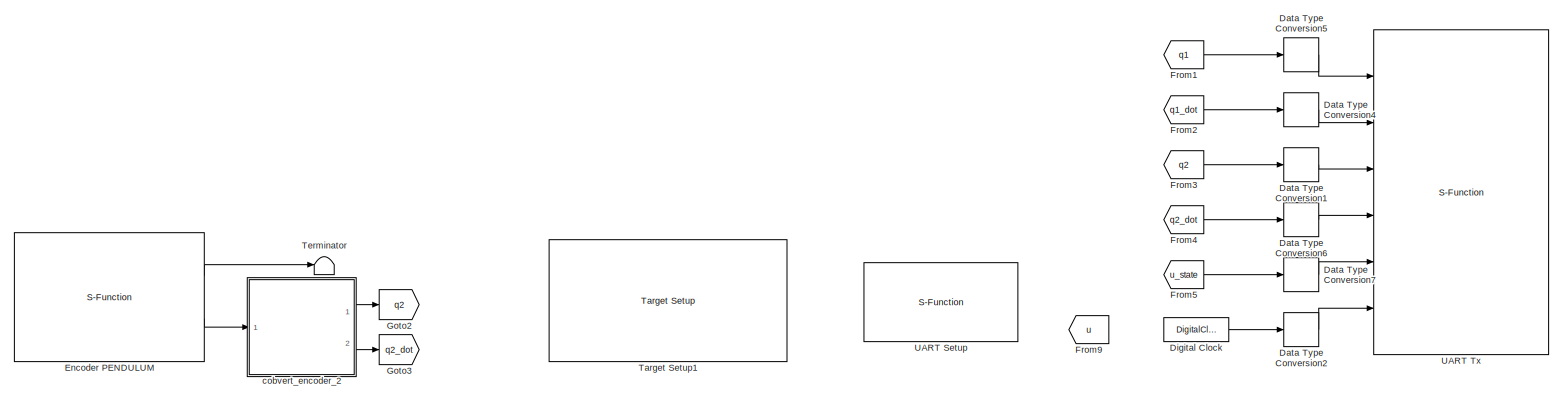
[diagram: root canvas - part 1/4, top center region]
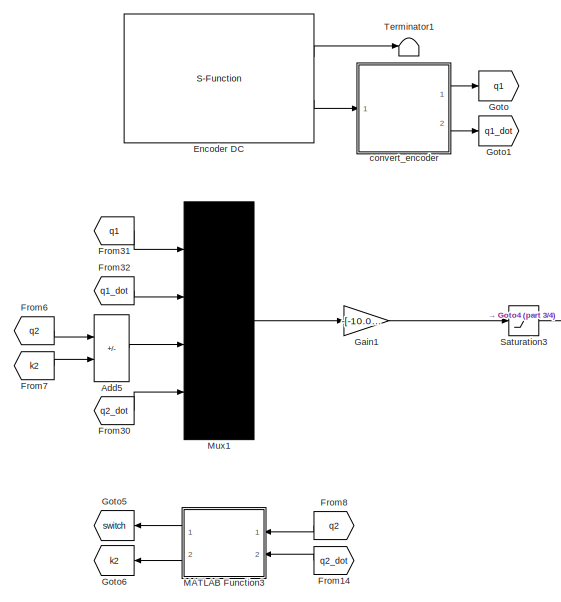
[diagram: root canvas - part 2/4, middle left region]
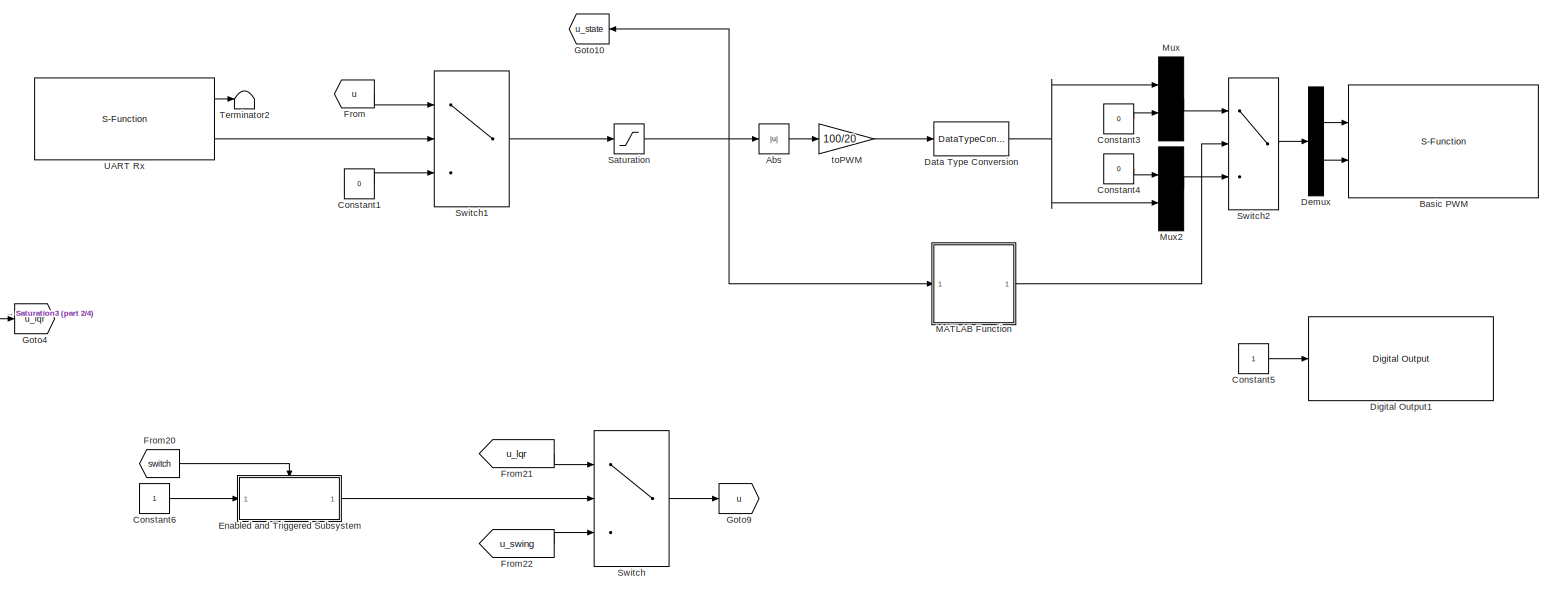
[diagram: root canvas - part 3/4, central region]
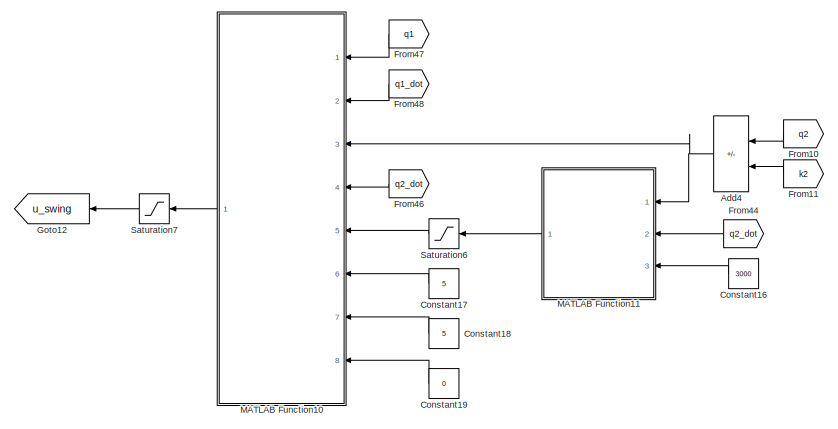
[diagram: root canvas - part 4/4, bottom center region]
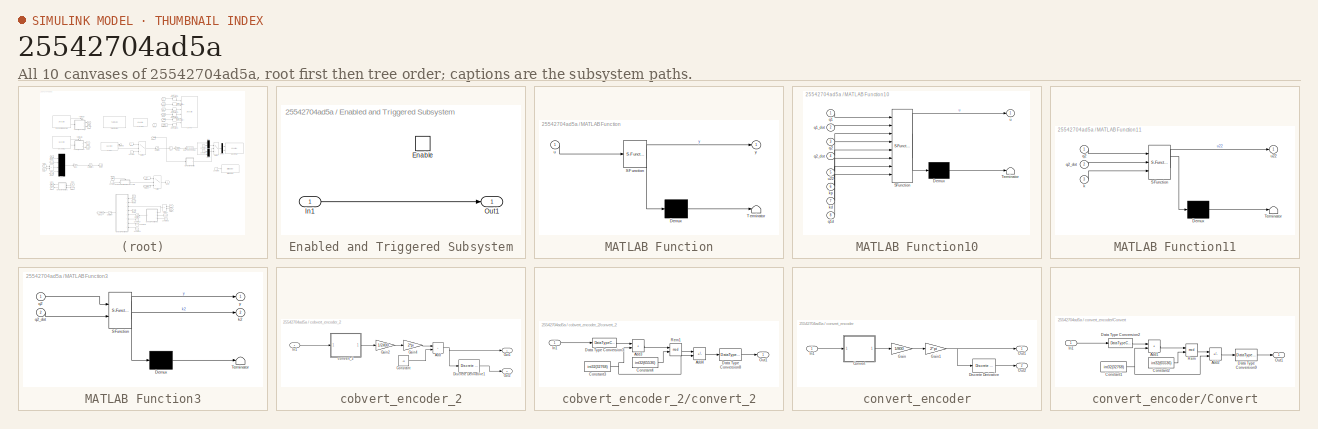
[diagram: thumbnail index - all 10 canvases of the model, root first then tree order]
MODEL slx_25542704ad5a
KIND model
CONFIG AbsTol = auto
CONFIG EnableMultiTasking = off
CONFIG FixedStep = auto
CONFIG MaxStep = auto
CONFIG MinStep = auto
CONFIG PreLoadFcn = waijung.modelPreload; % Required for working with Waijung Blockset. Do not remove.
CONFIG RelTol = 1e-3
CONFIG SampleTimeConstraint = Unconstrained
CONFIG SolverName = FixedStepAuto
CONFIG StartTime = 0.0
CONFIG StopTime = 100
BLOCK [Abs] Abs
  OutDataTypeStr = single
  SaturateOnIntegerOverflow = off
BLOCK [Sum] Add4
  IconShape = rectangular
  Inputs = +-
  NameLocation = top
  Ports = [2, 1]
BLOCK [Sum] Add5
  IconShape = rectangular
  Inputs = +-
  Ports = [2, 1]
BLOCK [S-Function] Basic PWM
  EnableBusSupport = off
  FunctionName = stm32f4_basicpwm
  Parameters = timer,pwmperiod,ch1pin,ch2pin,ch3pin,ch4pin,sampletime,sampletimestr,blockid,apb,portstr,pinstr,pinmat,timarr,timprescale,chmat,polaritystr
  Ports = [2]
  SFcnIsStateOwnerBlock = off
  SFunctionDeploymentMode = off
BLOCK [Constant] Constant1
  SampleTime = 0.02
  Value = 0
BLOCK [Constant] Constant16
  NameLocation = top
  SampleTime = -1
  Value = 3000
BLOCK [Constant] Constant17
  NameLocation = top
  SampleTime = -1
  Value = 5
BLOCK [Constant] Constant18
  NameLocation = top
  SampleTime = -1
  Value = 5
BLOCK [Constant] Constant19
  NameLocation = top
  SampleTime = -1
  Value = 0
BLOCK [Constant] Constant3
  SampleTime = 0.02
  Value = 0
BLOCK [Constant] Constant4
  SampleTime = 0.02
  Value = 0
BLOCK [Constant] Constant5
  SampleTime = 0.02
BLOCK [Constant] Constant6
  SampleTime = 0.02
BLOCK [DataTypeConversion] Data Type Conversion
  OutDataTypeStr = double
  RndMeth = Floor
  SaturateOnIntegerOverflow = off
BLOCK [DataTypeConversion] Data Type Conversion1
  OutDataTypeStr = single
  RndMeth = Floor
  SaturateOnIntegerOverflow = off
BLOCK [DataTypeConversion] Data Type Conversion2
  OutDataTypeStr = single
  RndMeth = Floor
  SaturateOnIntegerOverflow = off
BLOCK [DataTypeConversion] Data Type Conversion4
  OutDataTypeStr = single
  RndMeth = Floor
  SaturateOnIntegerOverflow = off
BLOCK [DataTypeConversion] Data Type Conversion5
  OutDataTypeStr = single
  RndMeth = Floor
  SaturateOnIntegerOverflow = off
BLOCK [DataTypeConversion] Data Type Conversion6
  OutDataTypeStr = single
  RndMeth = Floor
  SaturateOnIntegerOverflow = off
BLOCK [DataTypeConversion] Data Type Conversion7
  OutDataTypeStr = single
  RndMeth = Floor
  SaturateOnIntegerOverflow = off
BLOCK [Demux] Demux
  Outputs = 2
  Ports = [1, 2]
BLOCK [DigitalClock] Digital Clock
  SampleTime = 0.02
BLOCK [Reference] Digital Output1  REF=stm32f4_io_lib/Digital Output
  Ports = [1]
  SourceBlock = stm32f4_io_lib/Digital Output
  SourceProductName = Waijung Blockset
  SourceType = stm32f4_digital_output
BLOCK [SubSystem] Enabled and Triggered Subsystem
  Ports = [1, 1, 1]
  RequestExecContextInheritance = off
  TreatAsAtomicUnit = on
BLOCK [EnablePort] Enabled and Triggered Subsystem/Enable
  Ports = []
BLOCK [Inport] Enabled and Triggered Subsystem/In1
BLOCK [Outport] Enabled and Triggered Subsystem/Out1
  VectorParamsAs1DForOutWhenUnconnected = off
BLOCK [S-Function] Encoder DC
  EnableBusSupport = off
  FunctionName = stm32f4_encoderread
  Parameters = sampletime,sampletimestr,blockid,timer,apb,portstr,pinstr,pinmat,chmat,filterstr,filter,factor,rstcnt,ppr
  Ports = [0, 2]
  SFcnIsStateOwnerBlock = off
  SFunctionDeploymentMode = off
BLOCK [S-Function] Encoder PENDULUM
  EnableBusSupport = off
  FunctionName = stm32f4_encoderread
  Parameters = sampletime,sampletimestr,blockid,timer,apb,portstr,pinstr,pinmat,chmat,filterstr,filter,factor,rstcnt,ppr
  Ports = [0, 2]
  SFcnIsStateOwnerBlock = off
  SFunctionDeploymentMode = off
BLOCK [From] From
  GotoTag = u
BLOCK [From] From1
  GotoTag = q1
BLOCK [From] From10
  GotoTag = q2
  NameLocation = top
BLOCK [From] From11
  GotoTag = k2
  NameLocation = top
BLOCK [From] From14
  GotoTag = q2_dot
  NameLocation = top
BLOCK [From] From2
  GotoTag = q1_dot
BLOCK [From] From20
  GotoTag = switch
BLOCK [From] From21
  GotoTag = u_lqr
BLOCK [From] From22
  GotoTag = u_swing
BLOCK [From] From3
  GotoTag = q2
BLOCK [From] From30
  GotoTag = q2_dot
BLOCK [From] From31
  GotoTag = q1
BLOCK [From] From32
  GotoTag = q1_dot
BLOCK [From] From4
  GotoTag = q2_dot
BLOCK [From] From44
  GotoTag = q2_dot
  NameLocation = top
BLOCK [From] From46
  GotoTag = q2_dot
  NameLocation = top
BLOCK [From] From47
  GotoTag = q1
  NameLocation = top
BLOCK [From] From48
  GotoTag = q1_dot
  NameLocation = top
BLOCK [From] From5
  GotoTag = u_state
BLOCK [From] From6
  GotoTag = q2
BLOCK [From] From7
  GotoTag = k2
BLOCK [From] From8
  GotoTag = q2
  NameLocation = top
BLOCK [From] From9
  GotoTag = u
BLOCK [Gain] Gain1
  Gain = -[-10.0000  -10.0487  140.3984   15.9273]
  Multiplication = Matrix(K*u)
BLOCK [Goto] Goto
  GotoTag = q1
BLOCK [Goto] Goto1
  GotoTag = q1_dot
BLOCK [Goto] Goto10
  GotoTag = u_state
  NameLocation = top
BLOCK [Goto] Goto12
  GotoTag = u_swing
  NameLocation = top
BLOCK [Goto] Goto2
  GotoTag = q2
BLOCK [Goto] Goto3
  GotoTag = q2_dot
BLOCK [Goto] Goto4
  GotoTag = u_lqr
BLOCK [Goto] Goto5
  GotoTag = switch
  NameLocation = top
BLOCK [Goto] Goto6
  GotoTag = k2
  NameLocation = top
BLOCK [Goto] Goto9
  GotoTag = u
BLOCK [SubSystem] MATLAB Function
  ErrorFcn = Stateflow.Translate.translate
  PermitHierarchicalResolution = ExplicitOnly
  Ports = [1, 1]
  RequestExecContextInheritance = off
  SFBlockType = MATLAB Function
  TreatAsAtomicUnit = on
BLOCK [Demux] MATLAB Function/ Demux 
  Outputs = 1
  Ports = [1, 1]
BLOCK [S-Function] MATLAB Function/ SFunction 
  EnableBusSupport = on
  FunctionName = sf_sfun
  PortCounts = [1 2]
  Ports = [1, 2]
  SFcnIsStateOwnerBlock = off
  SFunctionDeploymentMode = off
  Tag = Stateflow S-Function 2
BLOCK [Terminator] MATLAB Function/ Terminator 
BLOCK [Inport] MATLAB Function/u
BLOCK [Outport] MATLAB Function/y
  VectorParamsAs1DForOutWhenUnconnected = off
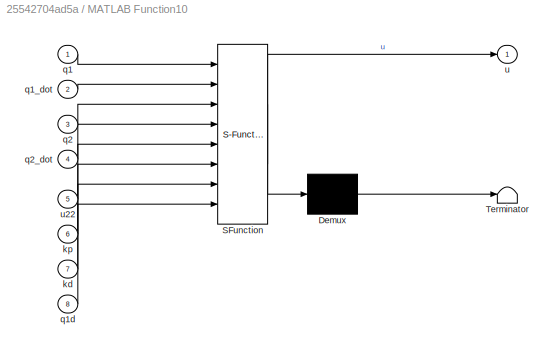
BLOCK [SubSystem] MATLAB Function10
  ErrorFcn = Stateflow.Translate.translate
  NameLocation = top
  PermitHierarchicalResolution = ExplicitOnly
  Ports = [8, 1]
  RequestExecContextInheritance = off
  SFBlockType = MATLAB Function
  TreatAsAtomicUnit = on
BLOCK [Demux] MATLAB Function10/ Demux 
  Outputs = 1
  Ports = [1, 1]
BLOCK [S-Function] MATLAB Function10/ SFunction 
  EnableBusSupport = on
  FunctionName = sf_sfun
  PortCounts = [8 2]
  Ports = [8, 2]
  SFcnIsStateOwnerBlock = off
  SFunctionDeploymentMode = off
  Tag = Stateflow S-Function 11
BLOCK [Terminator] MATLAB Function10/ Terminator 
BLOCK [Inport] MATLAB Function10/kd
  Port = 7
BLOCK [Inport] MATLAB Function10/kp
  Port = 6
BLOCK [Inport] MATLAB Function10/q1
BLOCK [Inport] MATLAB Function10/q1_dot
  Port = 2
BLOCK [Inport] MATLAB Function10/q1d
  Port = 8
BLOCK [Inport] MATLAB Function10/q2
  Port = 3
BLOCK [Inport] MATLAB Function10/q2_dot
  Port = 4
BLOCK [Outport] MATLAB Function10/u
BLOCK [Inport] MATLAB Function10/u22
  Port = 5
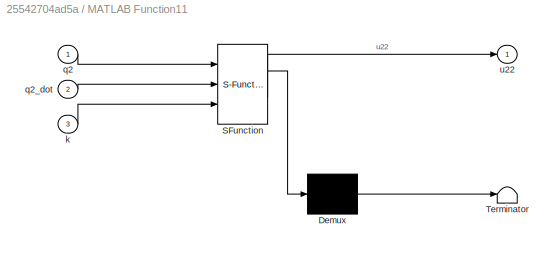
BLOCK [SubSystem] MATLAB Function11
  ErrorFcn = Stateflow.Translate.translate
  NameLocation = top
  PermitHierarchicalResolution = ExplicitOnly
  Ports = [3, 1]
  RequestExecContextInheritance = off
  SFBlockType = MATLAB Function
  TreatAsAtomicUnit = on
BLOCK [Demux] MATLAB Function11/ Demux 
  Outputs = 1
  Ports = [1, 1]
BLOCK [S-Function] MATLAB Function11/ SFunction 
  EnableBusSupport = on
  FunctionName = sf_sfun
  PortCounts = [3 2]
  Ports = [3, 2]
  SFcnIsStateOwnerBlock = off
  SFunctionDeploymentMode = off
  Tag = Stateflow S-Function 12
BLOCK [Terminator] MATLAB Function11/ Terminator 
BLOCK [Inport] MATLAB Function11/k
  Port = 3
BLOCK [Inport] MATLAB Function11/q2
BLOCK [Inport] MATLAB Function11/q2_dot
  Port = 2
BLOCK [Outport] MATLAB Function11/u22
BLOCK [SubSystem] MATLAB Function3
  ErrorFcn = Stateflow.Translate.translate
  NameLocation = top
  PermitHierarchicalResolution = ExplicitOnly
  Ports = [2, 2]
  RequestExecContextInheritance = off
  SFBlockType = MATLAB Function
  TreatAsAtomicUnit = on
BLOCK [Demux] MATLAB Function3/ Demux 
  Outputs = 1
  Ports = [1, 1]
BLOCK [S-Function] MATLAB Function3/ SFunction 
  EnableBusSupport = on
  FunctionName = sf_sfun
  PortCounts = [2 3]
  Ports = [2, 3]
  SFcnIsStateOwnerBlock = off
  SFunctionDeploymentMode = off
  Tag = Stateflow S-Function 4
BLOCK [Terminator] MATLAB Function3/ Terminator 
BLOCK [Outport] MATLAB Function3/k2
  Port = 2
  VectorParamsAs1DForOutWhenUnconnected = off
BLOCK [Inport] MATLAB Function3/q2
BLOCK [Inport] MATLAB Function3/q2_dot
  Port = 2
BLOCK [Outport] MATLAB Function3/y
  VectorParamsAs1DForOutWhenUnconnected = off
BLOCK [Mux] Mux
  DisplayOption = bar
  Inputs = 2
  Ports = [2, 1]
BLOCK [Mux] Mux1
  DisplayOption = bar
  Ports = [4, 1]
BLOCK [Mux] Mux2
  DisplayOption = bar
  Inputs = 2
  Ports = [2, 1]
BLOCK [Saturate] Saturation
  LowerLimit = -12
  UpperLimit = 12
BLOCK [Saturate] Saturation3
  LowerLimit = -10
  UpperLimit = 10
BLOCK [Saturate] Saturation6
  LinearizeAsGain = off
  LowerLimit = -5
  NameLocation = top
  UpperLimit = 5
BLOCK [Saturate] Saturation7
  LowerLimit = -12
  NameLocation = top
  UpperLimit = 12
BLOCK [Switch] Switch
  Criteria = u2 > Threshold
  InputSameDT = off
  SaturateOnIntegerOverflow = off
BLOCK [Switch] Switch1
  Criteria = u2 > Threshold
  InputSameDT = off
  SaturateOnIntegerOverflow = off
  Threshold = 1
BLOCK [Switch] Switch2
  Criteria = u2 > Threshold
  InputSameDT = off
  SaturateOnIntegerOverflow = off
BLOCK [Reference] Target Setup1  REF=stm32f4_device_config_lib/Target Setup
  Ports = []
  Priority = 100
  SourceBlock = stm32f4_device_config_lib/Target Setup
  SourceProductName = Waijung Blockset
  SourceType = stm32f4_target_setup
BLOCK [Terminator] Terminator
BLOCK [Terminator] Terminator1
BLOCK [Terminator] Terminator2
BLOCK [S-Function] UART Rx
  EnableBusSupport = off
  FunctionName = stm32f4_usart
  Parameters = configuration,uartmodule,transfer,baudrate,inputtype,outputtype,confstr,binheaderarray,binterminatorarray,asciiheader,asciiterminator,bindatalength,packetmode,varname,sampletime,sampletimestr,blockid  <repeated x3 — deduplicated; at blocks: UART Rx, UART Setup, UART Tx>
  Ports = [0, 2]
  Priority = 1
  SFcnIsStateOwnerBlock = off
  SFunctionDeploymentMode = off
BLOCK [S-Function] UART Setup
  EnableBusSupport = off
  FunctionName = stm32f4_usart
  Ports = []
  Priority = 1
  SFcnIsStateOwnerBlock = off
  SFunctionDeploymentMode = off
BLOCK [S-Function] UART Tx
  EnableBusSupport = off
  FunctionName = stm32f4_usart
  Ports = [6]
  Priority = 1
  SFcnIsStateOwnerBlock = off
  SFunctionDeploymentMode = off
BLOCK [SubSystem] cobvert_encoder_2
  Ports = [1, 2]
  RequestExecContextInheritance = off
BLOCK [Sum] cobvert_encoder_2/Add
  IconShape = rectangular
  Ports = [2, 1]
BLOCK [Constant] cobvert_encoder_2/Constant
  SampleTime = 0.02
  Value = -pi
BLOCK [Reference] cobvert_encoder_2/Discrete Derivative1  REF=simulink/Discrete/Discrete Derivative
  Ports = [1, 1]
  SourceBlock = simulink/Discrete/Discrete Derivative
  SourceProductBaseCode = SL
  SourceType = Discrete Derivative
BLOCK [Gain] cobvert_encoder_2/Gain2
  Gain = 1/2400
BLOCK [Gain] cobvert_encoder_2/Gain4
  Gain = 2*pi
BLOCK [Inport] cobvert_encoder_2/In1
BLOCK [Outport] cobvert_encoder_2/Out1
  VectorParamsAs1DForOutWhenUnconnected = off
BLOCK [Outport] cobvert_encoder_2/Out2
  Port = 2
  VectorParamsAs1DForOutWhenUnconnected = off
BLOCK [SubSystem] cobvert_encoder_2/convert_2
  Ports = [1, 1]
  RequestExecContextInheritance = off
BLOCK [Sum] cobvert_encoder_2/convert_2/Add3
  IconShape = rectangular
  Ports = [2, 1]
BLOCK [Sum] cobvert_encoder_2/convert_2/Add4
  IconShape = rectangular
  Inputs = +-
  Ports = [2, 1]
BLOCK [Constant] cobvert_encoder_2/convert_2/Constant3
  SampleTime = 0.02
  Value = int32(32768)
BLOCK [Constant] cobvert_encoder_2/convert_2/Constant4
  SampleTime = 0.02
  Value = int32(65536)
BLOCK [DataTypeConversion] cobvert_encoder_2/convert_2/Data Type Conversion3
  OutDataTypeStr = int32
  RndMeth = Floor
  SaturateOnIntegerOverflow = off
BLOCK [DataTypeConversion] cobvert_encoder_2/convert_2/Data Type Conversion8
  OutDataTypeStr = double
  RndMeth = Floor
  SaturateOnIntegerOverflow = off
BLOCK [Inport] cobvert_encoder_2/convert_2/In1
BLOCK [Outport] cobvert_encoder_2/convert_2/Out1
  VectorParamsAs1DForOutWhenUnconnected = off
BLOCK [Math] cobvert_encoder_2/convert_2/Rem1
  Operator = mod
  Ports = [2, 1]
  SignedPower = on
BLOCK [SubSystem] convert_encoder
  Ports = [1, 2]
  RequestExecContextInheritance = off
BLOCK [SubSystem] convert_encoder/Convert
  Ports = [1, 1]
  RequestExecContextInheritance = off
BLOCK [Sum] convert_encoder/Convert/Add1
  IconShape = rectangular
  Ports = [2, 1]
BLOCK [Sum] convert_encoder/Convert/Add2
  IconShape = rectangular
  Inputs = +-
  Ports = [2, 1]
BLOCK [Constant] convert_encoder/Convert/Constant1
  SampleTime = 0.02
  Value = int32(32768)
BLOCK [Constant] convert_encoder/Convert/Constant2
  SampleTime = 0.02
  Value = int32(65536)
BLOCK [DataTypeConversion] convert_encoder/Convert/Data Type Conversion2
  OutDataTypeStr = int32
  RndMeth = Floor
  SaturateOnIntegerOverflow = off
BLOCK [DataTypeConversion] convert_encoder/Convert/Data Type Conversion9
  OutDataTypeStr = double
  RndMeth = Floor
  SaturateOnIntegerOverflow = off
BLOCK [Inport] convert_encoder/Convert/In1
BLOCK [Outport] convert_encoder/Convert/Out1
  VectorParamsAs1DForOutWhenUnconnected = off
BLOCK [Math] convert_encoder/Convert/Rem
  Operator = mod
  Ports = [2, 1]
  SignedPower = on
BLOCK [Reference] convert_encoder/Discrete Derivative  REF=simulink/Discrete/Discrete Derivative
  Ports = [1, 1]
  SourceBlock = simulink/Discrete/Discrete Derivative
  SourceProductBaseCode = SL
  SourceType = Discrete Derivative
BLOCK [Gain] convert_encoder/Gain
  Gain = 1/800
BLOCK [Gain] convert_encoder/Gain1
  Gain = 2*pi
BLOCK [Inport] convert_encoder/In1
BLOCK [Outport] convert_encoder/Out1
  VectorParamsAs1DForOutWhenUnconnected = off
BLOCK [Outport] convert_encoder/Out2
  Port = 2
  VectorParamsAs1DForOutWhenUnconnected = off
BLOCK [Gain] toPWM
  Gain = 100/20
  OutDataTypeStr = single
  ParamDataTypeStr = single
LINE Abs:1 -> toPWM:1
NET Add4:1 -> MATLAB Function10:3, MATLAB Function11:1
LINE Add5:1 -> Mux1:3
LINE Constant16:1 -> MATLAB Function11:3
LINE Constant17:1 -> MATLAB Function10:6
LINE Constant18:1 -> MATLAB Function10:7
LINE Constant19:1 -> MATLAB Function10:8
LINE Constant1:1 -> Switch1:3
LINE Constant3:1 -> Mux:2
LINE Constant4:1 -> Mux2:1
LINE Constant5:1 -> Digital Output1:1
LINE Constant6:1 -> Enabled and Triggered Subsystem:1
LINE Data Type Conversion1:1 -> UART Tx:3
LINE Data Type Conversion2:1 -> UART Tx:6
LINE Data Type Conversion4:1 -> UART Tx:2
LINE Data Type Conversion5:1 -> UART Tx:1
LINE Data Type Conversion6:1 -> UART Tx:4
LINE Data Type Conversion7:1 -> UART Tx:5
NET Data Type Conversion:1 -> Mux2:2, Mux:1
LINE Demux:1 -> Basic PWM:1
LINE Demux:2 -> Basic PWM:2
LINE Digital Clock:1 -> Data Type Conversion2:1
LINE Enabled and Triggered Subsystem/In1:1 -> Enabled and Triggered Subsystem/Out1:1
LINE Enabled and Triggered Subsystem:1 -> Switch:2
LINE Encoder DC:1 -> Terminator1:1
LINE Encoder DC:2 -> convert_encoder:1
LINE Encoder PENDULUM:1 -> Terminator:1
LINE Encoder PENDULUM:2 -> cobvert_encoder_2:1
LINE From10:1 -> Add4:1
LINE From11:1 -> Add4:2
LINE From14:1 -> MATLAB Function3:2
LINE From1:1 -> Data Type Conversion5:1
LINE From20:1 -> Enabled and Triggered Subsystem:enable
LINE From21:1 -> Switch:1
LINE From22:1 -> Switch:3
LINE From2:1 -> Data Type Conversion4:1
LINE From30:1 -> Mux1:4
LINE From31:1 -> Mux1:1
LINE From32:1 -> Mux1:2
LINE From3:1 -> Data Type Conversion1:1
LINE From44:1 -> MATLAB Function11:2
LINE From46:1 -> MATLAB Function10:4
LINE From47:1 -> MATLAB Function10:1
LINE From48:1 -> MATLAB Function10:2
LINE From4:1 -> Data Type Conversion6:1
LINE From5:1 -> Data Type Conversion7:1
LINE From6:1 -> Add5:1
LINE From7:1 -> Add5:2
LINE From8:1 -> MATLAB Function3:1
LINE From:1 -> Switch1:1
LINE Gain1:1 -> Saturation3:1
LINE MATLAB Function10:1 -> Saturation7:1
LINE MATLAB Function11:1 -> Saturation6:1
LINE MATLAB Function3:1 -> Goto5:1
LINE MATLAB Function3:2 -> Goto6:1
LINE MATLAB Function:1 -> Switch2:2
LINE Mux1:1 -> Gain1:1
LINE Mux2:1 -> Switch2:3
LINE Mux:1 -> Switch2:1
LINE Saturation3:1 -> Goto4:1
LINE Saturation6:1 -> MATLAB Function10:5
LINE Saturation7:1 -> Goto12:1
NET Saturation:1 -> Abs:1, Goto10:1, MATLAB Function:1
LINE Switch1:1 -> Saturation:1
LINE Switch2:1 -> Demux:1
LINE Switch:1 -> Goto9:1
LINE UART Rx:1 -> Terminator2:1
LINE UART Rx:2 -> Switch1:2
NET cobvert_encoder_2/Add:1 -> cobvert_encoder_2/Discrete Derivative1:1, cobvert_encoder_2/Out1:1
LINE cobvert_encoder_2/Constant:1 -> cobvert_encoder_2/Add:2
LINE cobvert_encoder_2/Discrete Derivative1:1 -> cobvert_encoder_2/Out2:1
LINE cobvert_encoder_2/Gain2:1 -> cobvert_encoder_2/Gain4:1
LINE cobvert_encoder_2/Gain4:1 -> cobvert_encoder_2/Add:1
LINE cobvert_encoder_2/In1:1 -> cobvert_encoder_2/convert_2:1
LINE cobvert_encoder_2/convert_2/Add3:1 -> cobvert_encoder_2/convert_2/Rem1:1
LINE cobvert_encoder_2/convert_2/Add4:1 -> cobvert_encoder_2/convert_2/Data Type Conversion8:1
NET cobvert_encoder_2/convert_2/Constant3:1 -> cobvert_encoder_2/convert_2/Add3:2, cobvert_encoder_2/convert_2/Add4:2
LINE cobvert_encoder_2/convert_2/Constant4:1 -> cobvert_encoder_2/convert_2/Rem1:2
LINE cobvert_encoder_2/convert_2/Data Type Conversion3:1 -> cobvert_encoder_2/convert_2/Add3:1
LINE cobvert_encoder_2/convert_2/Data Type Conversion8:1 -> cobvert_encoder_2/convert_2/Out1:1
LINE cobvert_encoder_2/convert_2/In1:1 -> cobvert_encoder_2/convert_2/Data Type Conversion3:1
LINE cobvert_encoder_2/convert_2/Rem1:1 -> cobvert_encoder_2/convert_2/Add4:1
LINE cobvert_encoder_2/convert_2:1 -> cobvert_encoder_2/Gain2:1
LINE cobvert_encoder_2:1 -> Goto2:1
LINE cobvert_encoder_2:2 -> Goto3:1
LINE convert_encoder/Convert/Add1:1 -> convert_encoder/Convert/Rem:1
LINE convert_encoder/Convert/Add2:1 -> convert_encoder/Convert/Data Type Conversion9:1
NET convert_encoder/Convert/Constant1:1 -> convert_encoder/Convert/Add1:2, convert_encoder/Convert/Add2:2
LINE convert_encoder/Convert/Constant2:1 -> convert_encoder/Convert/Rem:2
LINE convert_encoder/Convert/Data Type Conversion2:1 -> convert_encoder/Convert/Add1:1
LINE convert_encoder/Convert/Data Type Conversion9:1 -> convert_encoder/Convert/Out1:1
LINE convert_encoder/Convert/In1:1 -> convert_encoder/Convert/Data Type Conversion2:1
LINE convert_encoder/Convert/Rem:1 -> convert_encoder/Convert/Add2:1
LINE convert_encoder/Convert:1 -> convert_encoder/Gain:1
LINE convert_encoder/Discrete Derivative:1 -> convert_encoder/Out2:1
NET convert_encoder/Gain1:1 -> convert_encoder/Discrete Derivative:1, convert_encoder/Out1:1
LINE convert_encoder/Gain:1 -> convert_encoder/Gain1:1
LINE convert_encoder/In1:1 -> convert_encoder/Convert:1
LINE convert_encoder:1 -> Goto:1
LINE convert_encoder:2 -> Goto1:1
LINE toPWM:1 -> Data Type Conversion:1
note: NET lines group one-source signal fan-out (src -> all destinations, sorted); 1:1 wires keep LINE
CHART MATLAB Function states=1 transitions=1
  STATE_LABEL 'eML_blk_kernel()'
  STATE_LABEL 'SCRIPT:\n\n\n\nfunction y= fcn(u)\nif u>0\n    y=0;\nelse\n    y=1;\nend\n\n'
CHART MATLAB Function3 states=1 transitions=1
  STATE_LABEL 'eML_blk_kernel()'
  STATE_LABEL 'SCRIPT:\nfunction [y,k2]= fcn(q2,q2_dot)\n\nk = round(q2/(2*pi));\nk2 = k*2*pi;\n\nif (abs(q2 - k*2*pi) < 0.3) && (abs(q2_dot) < 2)\n    y = 1;\nelse\n    y = 0;\nend\n'
CHART MATLAB Function10 states=1 transitions=1
  STATE_LABEL 'eML_blk_kernel()'
  STATE_LABEL 'SCRIPT:\nfunction u = fcn(q1,q1_dot,q2,q2_dot,u22,kp,kd,q1d)\n\nu = 0.9259*(0.09319*cos(q2)^2 - 0.4391)*(2.3*kd*q1_dot - 2.3*u22 + (2.3*(0.3143*q1_dot - 0.3928*sin(2.0*q2) - 1.0*q1_dot^2*(0.008641*sin(q2) - 0.008641*sin(q2)^3) + 0.01152*q2_dot^2*sin(q2) + 0.003142*q2_dot*cos(q2) - 0.003524*q1_dot*q2_dot*sin(2.0*q2)))/(0.02358*cos(q2)^2 - 0.1111) + 2.3*kp*(q1 - 1.0*q1d));\n'
CHART MATLAB Function11 states=1 transitions=1
  STATE_LABEL 'eML_blk_kernel()'
  STATE_LABEL 'SCRIPT:\nfunction u22 = fcn(q2,q2_dot,k)\n\n\nif q2_dot*cos(q2) == 0\n    sig = 1;\nelse\n    sig = sign(q2_dot*cos(q2));\nend\n\nu22 = -k*sig*((0.0036*q2_dot^2)/3 - 0.1650 + 0.1650*cos(q2));\n'
CHART  states=0 transitions=0
CHART  states=0 transitions=0
CHART  states=0 transitions=0
CHART  states=0 transitions=0
